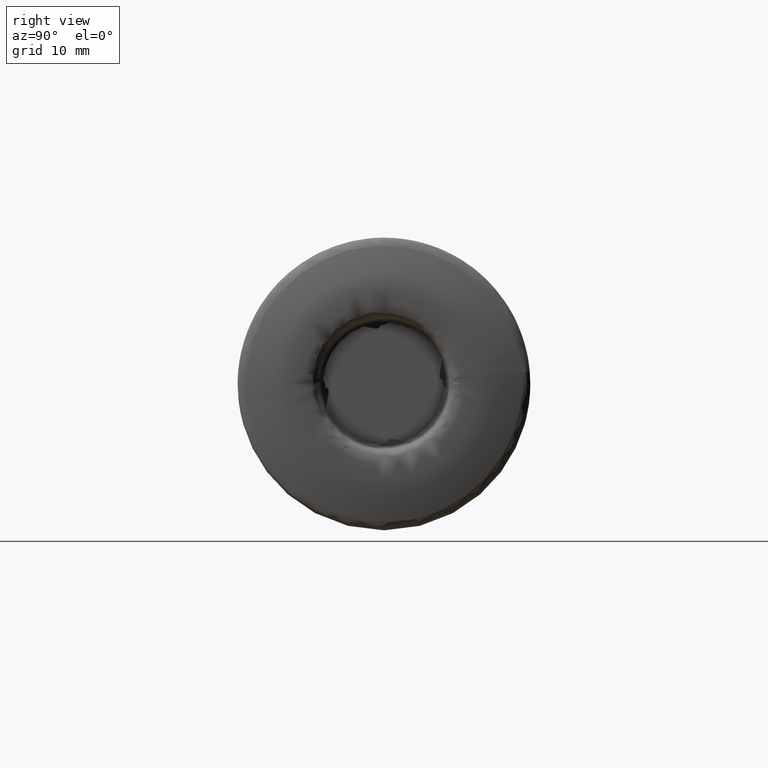
[diagram: clean part render]
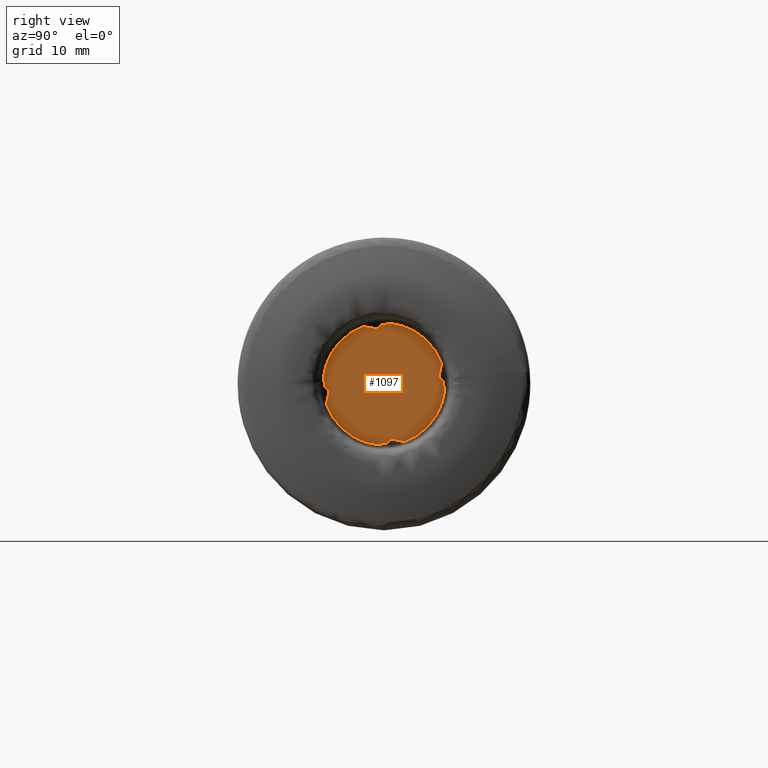
[diagram: same view with one face highlighted and labeled with its STEP entity id]
A machine part, right view. The second image highlights one B-rep face of the part: STEP entity #1097.
In plain terms, the highlighted planar face has unit normal (1, 0, -0).
Its self-contained STEP definition (entity closure, byte-faithful):
#48 = CARTESIAN_POINT ( 'NONE',  ( -1.250000000000000000, -6.057441666973489600, -0.9519473926571510000 ) ) ;
#93 = CARTESIAN_POINT ( 'NONE',  ( -1.250000000000001100, 6.452281388916555100, 0.3636903392071347300 ) ) ;
#139 = ORIENTED_EDGE ( 'NONE', *, *, #412, .F. ) ;
#150 = PLANE ( 'NONE',  #3189 ) ;
#231 = DIRECTION ( 'NONE',  ( -1.224646799147351500E-016, 1.000000000000000000, 0.0000000000000000000 ) ) ;
#240 = EDGE_CURVE ( 'NONE', #1516, #1267, #1296, .T. ) ;
#244 = CARTESIAN_POINT ( 'NONE',  ( -1.250000000000000400, 0.2442306626479584200, 6.526120147402795400 ) ) ;
#253 = ORIENTED_EDGE ( 'NONE', *, *, #4553, .T. ) ;
#263 = VECTOR ( 'NONE', #3299, 1000.000000000000100 ) ;
#315 = ORIENTED_EDGE ( 'NONE', *, *, #5205, .T. ) ;
#333 = CARTESIAN_POINT ( 'NONE',  ( -1.250000000000000700, 0.9519473926571705400, -6.057441666973487800 ) ) ;
#372 = EDGE_CURVE ( 'NONE', #3312, #5601, #2164, .T. ) ;
#396 = CARTESIAN_POINT ( 'NONE',  ( -1.250000000000000200, -1.530808498934189600E-016, 0.0000000000000000000 ) ) ;
#397 = ORIENTED_EDGE ( 'NONE', *, *, #5589, .T. ) ;
#412 = EDGE_CURVE ( 'NONE', #1138, #3725, #1132, .T. ) ;
#466 = EDGE_CURVE ( 'NONE', #5045, #3418, #6232, .T. ) ;
#477 = CARTESIAN_POINT ( 'NONE',  ( -1.250000000000001600, 6.448458001384087100, 0.002503947404829226000 ) ) ;
#501 =( BOUNDED_CURVE ( )  B_SPLINE_CURVE ( 3, ( #4812, #5329, #2274, #5850 ),
 .UNSPECIFIED., .F., .F. ) 
 B_SPLINE_CURVE_WITH_KNOTS ( ( 4, 4 ),
 ( 2.006936950805929600, 3.752266202800259800 ),
 .UNSPECIFIED. ) 
 CURVE ( )  GEOMETRIC_REPRESENTATION_ITEM ( )  RATIONAL_B_SPLINE_CURVE ( ( 1.000000000000000000, 0.7618584064576927600, 0.7618584064576927600, 1.000000000000000000 ) ) 
 REPRESENTATION_ITEM ( '' )  );
#519 = CARTESIAN_POINT ( 'NONE',  ( -1.249999999999999300, -6.210253814260271500, -0.3636903392071787500 ) ) ;
#534 = CIRCLE ( 'NONE', #5577, 6.684999999999999600 ) ;
#658 =( BOUNDED_CURVE ( )  B_SPLINE_CURVE ( 3, ( #4306, #244, #6367, #3313 ),
 .UNSPECIFIED., .F., .T. ) 
 B_SPLINE_CURVE_WITH_KNOTS ( ( 4, 4 ),
 ( 5.947954393526559100, 6.719325931190619300 ),
 .UNSPECIFIED. ) 
 CURVE ( )  GEOMETRIC_REPRESENTATION_ITEM ( )  RATIONAL_B_SPLINE_CURVE ( ( 1.000000000000000000, 0.9510271120106296200, 0.9510271120106296200, 1.000000000000000000 ) ) 
 REPRESENTATION_ITEM ( '' )  );
#670 = CARTESIAN_POINT ( 'NONE',  ( -1.250000000000000700, 0.1632019595909700300, -6.450159091985032200 ) ) ;
#690 = VECTOR ( 'NONE', #3190, 1000.000000000000000 ) ;
#708 = VECTOR ( 'NONE', #2686, 1000.000000000000000 ) ;
#753 = DIRECTION ( 'NONE',  ( 2.268472240234513600E-017, -0.1852348156067459800, -0.9826942877045409300 ) ) ;
#783 = CARTESIAN_POINT ( 'NONE',  ( -1.250000000000001100, -0.3636903392072029500, 6.549255849151034400 ) ) ;
#809 = CARTESIAN_POINT ( 'NONE',  ( -1.250000000000001100, -0.3636903392072004000, 6.210253814260270600 ) ) ;
#817 = VECTOR ( 'NONE', #1699, 1000.000000000000000 ) ;
#890 = LINE ( 'NONE', #5609, #4955 ) ;
#898 = EDGE_CURVE ( 'NONE', #4249, #3820, #5277, .T. ) ;
#907 = DIRECTION ( 'NONE',  ( -1.297474551964702500E-016, 1.000000000000000000, 0.0000000000000000000 ) ) ;
#1022 = ORIENTED_EDGE ( 'NONE', *, *, #2710, .T. ) ;
#1025 = CARTESIAN_POINT ( 'NONE',  ( -1.250000000000000000, -6.057441666973489600, -0.9519473926571510000 ) ) ;
#1030 = DIRECTION ( 'NONE',  ( 1.224646799147351700E-016, -1.000000000000000000, -3.737644989737371300E-015 ) ) ;
#1041 = CARTESIAN_POINT ( 'NONE',  ( -1.250000000000000000, -5.446941594640671600, 2.286833242395580200 ) ) ;
#1061 = CARTESIAN_POINT ( 'NONE',  ( -1.250000000000000200, -0.04828209003385523100, -6.447920398897466000 ) ) ;
#1074 = VERTEX_POINT ( 'NONE', #3228 ) ;
#1096 = VERTEX_POINT ( 'NONE', #1324 ) ;
#1097 = ADVANCED_FACE ( 'NONE', ( #2082 ), #150, .T. ) ;
#1132 = LINE ( 'NONE', #5487, #3845 ) ;
#1138 = VERTEX_POINT ( 'NONE', #6488 ) ;
#1174 = CARTESIAN_POINT ( 'NONE',  ( -1.250000000000001600, 6.684999999999999600, 0.0000000000000000000 ) ) ;
#1189 = CARTESIAN_POINT ( 'NONE',  ( -1.250000000000000700, 0.9519473926571705400, -6.057441666973487800 ) ) ;
#1208 = VECTOR ( 'NONE', #3142, 1000.000000000000100 ) ;
#1253 = CARTESIAN_POINT ( 'NONE',  ( -1.250000000000001600, 6.057441666973498500, 0.9519473926571087000 ) ) ;
#1267 = VERTEX_POINT ( 'NONE', #1189 ) ;
#1288 = ORIENTED_EDGE ( 'NONE', *, *, #5909, .T. ) ;
#1296 = LINE ( 'NONE', #2162, #263 ) ;
#1324 = CARTESIAN_POINT ( 'NONE',  ( -1.250000000000001100, 6.673269334927969300, -0.3958552557564825600 ) ) ;
#1363 =( BOUNDED_CURVE ( )  B_SPLINE_CURVE ( 3, ( #3914, #4416, #4942, #1889 ),
 .UNSPECIFIED., .F., .T. ) 
 B_SPLINE_CURVE_WITH_KNOTS ( ( 4, 4 ),
 ( 5.947954393526558200, 6.719325931190621900 ),
 .UNSPECIFIED. ) 
 CURVE ( )  GEOMETRIC_REPRESENTATION_ITEM ( )  RATIONAL_B_SPLINE_CURVE ( ( 1.000000000000000000, 0.9510271120106292800, 0.9510271120106292800, 1.000000000000000000 ) ) 
 REPRESENTATION_ITEM ( '' )  );
#1389 = CARTESIAN_POINT ( 'NONE',  ( -1.250000000000001600, 6.450159091985033100, 0.1632019595909001700 ) ) ;
#1400 = ORIENTED_EDGE ( 'NONE', *, *, #2639, .T. ) ;
#1445 = EDGE_CURVE ( 'NONE', #5842, #1074, #1363, .T. ) ;
#1493 = ORIENTED_EDGE ( 'NONE', *, *, #372, .T. ) ;
#1516 = VERTEX_POINT ( 'NONE', #2925 ) ;
#1529 = CARTESIAN_POINT ( 'NONE',  ( -1.250000000000000200, -1.530808498934189600E-016, 0.0000000000000000000 ) ) ;
#1545 = EDGE_CURVE ( 'NONE', #1746, #1074, #4387, .T. ) ;
#1547 = ORIENTED_EDGE ( 'NONE', *, *, #1545, .F. ) ;
#1556 = CARTESIAN_POINT ( 'NONE',  ( -1.249999999999999300, -6.673269334927972800, 0.3958552557564363200 ) ) ;
#1628 = CARTESIAN_POINT ( 'NONE',  ( -1.250000000000001600, 6.549255849151038000, 0.3636903392071342300 ) ) ;
#1650 = EDGE_CURVE ( 'NONE', #5028, #5842, #6122, .T. ) ;
#1699 = DIRECTION ( 'NONE',  ( -2.268472240234429200E-017, 0.1852348156067391000, 0.9826942877045421500 ) ) ;
#1746 = VERTEX_POINT ( 'NONE', #4646 ) ;
#1808 = ORIENTED_EDGE ( 'NONE', *, *, #4048, .T. ) ;
#1844 = CARTESIAN_POINT ( 'NONE',  ( -1.250000000000001100, 0.3636903392072000100, -6.210253814260269700 ) ) ;
#1889 = CARTESIAN_POINT ( 'NONE',  ( -1.250000000000000000, -6.450159091985033100, -0.1632019595909450200 ) ) ;
#1912 = VERTEX_POINT ( 'NONE', #2787 ) ;
#1932 = ORIENTED_EDGE ( 'NONE', *, *, #1650, .T. ) ;
#1992 = VECTOR ( 'NONE', #753, 999.9999999999998900 ) ;
#2019 =( BOUNDED_CURVE ( )  B_SPLINE_CURVE ( 3, ( #2880, #1844, #3379, #333 ),
 .UNSPECIFIED., .F., .T. ) 
 B_SPLINE_CURVE_WITH_KNOTS ( ( 4, 4 ),
 ( 2.006936950805930000, 3.752266202800257600 ),
 .UNSPECIFIED. ) 
 CURVE ( )  GEOMETRIC_REPRESENTATION_ITEM ( )  RATIONAL_B_SPLINE_CURVE ( ( 1.000000000000000000, 0.7618584064576934300, 0.7618584064576934300, 1.000000000000000000 ) ) 
 REPRESENTATION_ITEM ( '' )  );
#2045 = DIRECTION ( 'NONE',  ( -1.297474551964702500E-016, 1.000000000000000000, 0.0000000000000000000 ) ) ;
#2082 = FACE_OUTER_BOUND ( 'NONE', #2457, .T. ) ;
#2162 = CARTESIAN_POINT ( 'NONE',  ( -1.250000000000001300, 5.385656629125252300, -6.893182062686433300 ) ) ;
#2164 =( BOUNDED_CURVE ( )  B_SPLINE_CURVE ( 3, ( #783, #809, #3861, #4340 ),
 .UNSPECIFIED., .F., .F. ) 
 B_SPLINE_CURVE_WITH_KNOTS ( ( 4, 4 ),
 ( 2.006936950805930000, 3.752266202800258500 ),
 .UNSPECIFIED. ) 
 CURVE ( )  GEOMETRIC_REPRESENTATION_ITEM ( )  RATIONAL_B_SPLINE_CURVE ( ( 1.000000000000000000, 0.7618584064576930900, 0.7618584064576930900, 1.000000000000000000 ) ) 
 REPRESENTATION_ITEM ( '' )  );
#2222 = DIRECTION ( 'NONE',  ( 1.000000000000000000, 1.224646799147351500E-016, -0.0000000000000000000 ) ) ;
#2242 = EDGE_CURVE ( 'NONE', #4501, #6510, #5890, .T. ) ;
#2274 = CARTESIAN_POINT ( 'NONE',  ( -1.250000000000001600, 5.995072017569089700, 0.6210684593686451900 ) ) ;
#2391 = VERTEX_POINT ( 'NONE', #4435 ) ;
#2455 = VECTOR ( 'NONE', #3703, 1000.000000000000000 ) ;
#2457 = EDGE_LOOP ( 'NONE', ( #397, #1808, #5325, #1400, #4128, #6461, #253, #4954, #139, #3014, #1493, #2543, #1932, #5772, #1547, #315, #5349, #3784, #1022, #1288, #6136, #6604, #4822, #4962 ) ) ;
#2505 =( BOUNDED_CURVE ( )  B_SPLINE_CURVE ( 3, ( #4405, #2915, #4433, #1389 ),
 .UNSPECIFIED., .F., .F. ) 
 B_SPLINE_CURVE_WITH_KNOTS ( ( 4, 4 ),
 ( 5.947954393526559100, 6.719325931190621900 ),
 .UNSPECIFIED. ) 
 CURVE ( )  GEOMETRIC_REPRESENTATION_ITEM ( )  RATIONAL_B_SPLINE_CURVE ( ( 1.000000000000000000, 0.9510271120106292800, 0.9510271120106292800, 1.000000000000000000 ) ) 
 REPRESENTATION_ITEM ( '' )  );
#2543 = ORIENTED_EDGE ( 'NONE', *, *, #6169, .F. ) ;
#2555 = DIRECTION ( 'NONE',  ( 1.227204096360529100E-016, -0.9999439768675593100, 0.01058504257383587400 ) ) ;
#2611 = LINE ( 'NONE', #3203, #2455 ) ;
#2619 = DIRECTION ( 'NONE',  ( -1.203453413977754600E-016, 0.9826942877045427000, -0.1852348156067357100 ) ) ;
#2625 = CARTESIAN_POINT ( 'NONE',  ( -1.250000000000000700, 0.3636903392072024500, -6.452281388916551600 ) ) ;
#2639 = EDGE_CURVE ( 'NONE', #4249, #5988, #4595, .T. ) ;
#2666 =( BOUNDED_CURVE ( )  B_SPLINE_CURVE ( 3, ( #3109, #4113, #1061, #4635 ),
 .UNSPECIFIED., .F., .F. ) 
 B_SPLINE_CURVE_WITH_KNOTS ( ( 4, 4 ),
 ( 5.947954393526559100, 6.719325931190624600 ),
 .UNSPECIFIED. ) 
 CURVE ( )  GEOMETRIC_REPRESENTATION_ITEM ( )  RATIONAL_B_SPLINE_CURVE ( ( 1.000000000000000000, 0.9510271120106290600, 0.9510271120106290600, 1.000000000000000000 ) ) 
 REPRESENTATION_ITEM ( '' )  );
#2686 = DIRECTION ( 'NONE',  ( -8.853126418927959600E-031, 7.229126328580505400E-015, -1.000000000000000000 ) ) ;
#2710 = EDGE_CURVE ( 'NONE', #5045, #3607, #534, .T. ) ;
#2787 = CARTESIAN_POINT ( 'NONE',  ( -1.250000000000001100, 0.3636903392072024500, -6.549255849151034400 ) ) ;
#2849 = CARTESIAN_POINT ( 'NONE',  ( -1.250000000000000200, -1.530808498934189600E-016, 0.0000000000000000000 ) ) ;
#2880 = CARTESIAN_POINT ( 'NONE',  ( -1.250000000000001100, 0.3636903392072024500, -6.549255849151034400 ) ) ;
#2900 = EDGE_CURVE ( 'NONE', #1138, #3312, #2611, .T. ) ;
#2915 = CARTESIAN_POINT ( 'NONE',  ( -1.250000000000001100, 6.526120147402791900, -0.2442306626480264300 ) ) ;
#2925 = CARTESIAN_POINT ( 'NONE',  ( -1.250000000000000400, 2.236885063294663300, -6.299648419841319400 ) ) ;
#3014 = ORIENTED_EDGE ( 'NONE', *, *, #2900, .T. ) ;
#3033 = EDGE_CURVE ( 'NONE', #1912, #1267, #2019, .T. ) ;
#3091 = EDGE_CURVE ( 'NONE', #4121, #3418, #3202, .T. ) ;
#3109 = CARTESIAN_POINT ( 'NONE',  ( -1.250000000000000200, -0.3958552557564123900, -6.673269334927973700 ) ) ;
#3142 = DIRECTION ( 'NONE',  ( 1.296293850689936500E-018, -0.01058504257384634300, -0.9999439768675593100 ) ) ;
#3189 = AXIS2_PLACEMENT_3D ( 'NONE', #1174, #3827, #231 ) ;
#3190 = DIRECTION ( 'NONE',  ( -1.224646799147351700E-016, 1.000000000000000000, -3.245317687948895100E-015 ) ) ;
#3202 =( BOUNDED_CURVE ( )  B_SPLINE_CURVE ( 3, ( #5439, #519, #3565, #1025 ),
 .UNSPECIFIED., .F., .F. ) 
 B_SPLINE_CURVE_WITH_KNOTS ( ( 4, 4 ),
 ( 2.006936950805930000, 3.752266202800259400 ),
 .UNSPECIFIED. ) 
 CURVE ( )  GEOMETRIC_REPRESENTATION_ITEM ( )  RATIONAL_B_SPLINE_CURVE ( ( 1.000000000000000000, 0.7618584064576929800, 0.7618584064576929800, 1.000000000000000000 ) ) 
 REPRESENTATION_ITEM ( '' )  );
#3203 = CARTESIAN_POINT ( 'NONE',  ( -1.250000000000000700, -0.3636903392071543800, -5.095587291317349700E-014 ) ) ;
#3228 = CARTESIAN_POINT ( 'NONE',  ( -1.250000000000000000, -6.450159091985033100, -0.1632019595909450200 ) ) ;
#3278 = DIRECTION ( 'NONE',  ( -1.227204096360529100E-016, 0.9999439768675593100, -0.01058504257383586700 ) ) ;
#3299 = DIRECTION ( 'NONE',  ( 1.203453413977754600E-016, -0.9826942877045427000, 0.1852348156067356900 ) ) ;
#3312 = VERTEX_POINT ( 'NONE', #4597 ) ;
#3313 = CARTESIAN_POINT ( 'NONE',  ( -1.250000000000000700, -0.1632019595909656700, 6.450159091985031300 ) ) ;
#3346 = DIRECTION ( 'NONE',  ( -1.297474551964702500E-016, 1.000000000000000000, 0.0000000000000000000 ) ) ;
#3379 = CARTESIAN_POINT ( 'NONE',  ( -1.250000000000001100, 0.6210684593687073600, -5.995072017569084400 ) ) ;
#3418 = VERTEX_POINT ( 'NONE', #48 ) ;
#3484 = VERTEX_POINT ( 'NONE', #2625 ) ;
#3565 = CARTESIAN_POINT ( 'NONE',  ( -1.249999999999999300, -5.995072017569087900, -0.6210684593686870400 ) ) ;
#3607 = VERTEX_POINT ( 'NONE', #6289 ) ;
#3703 = DIRECTION ( 'NONE',  ( 8.853126418927959600E-031, -7.229126328580505400E-015, 1.000000000000000000 ) ) ;
#3714 = AXIS2_PLACEMENT_3D ( 'NONE', #2849, #6399, #3346 ) ;
#3725 = VERTEX_POINT ( 'NONE', #5883 ) ;
#3733 = VECTOR ( 'NONE', #2619, 1000.000000000000100 ) ;
#3784 = ORIENTED_EDGE ( 'NONE', *, *, #466, .F. ) ;
#3808 = CARTESIAN_POINT ( 'NONE',  ( -1.250000000000001600, 5.905692191165656800, 0.1468970971710064100 ) ) ;
#3820 = VERTEX_POINT ( 'NONE', #5799 ) ;
#3827 = DIRECTION ( 'NONE',  ( 1.000000000000000000, 1.224646799147351500E-016, -0.0000000000000000000 ) ) ;
#3845 = VECTOR ( 'NONE', #3278, 1000.000000000000100 ) ;
#3861 = CARTESIAN_POINT ( 'NONE',  ( -1.250000000000001100, -0.6210684593687079100, 5.995072017569085300 ) ) ;
#3914 = CARTESIAN_POINT ( 'NONE',  ( -1.249999999999999300, -6.673269334927972800, 0.3958552557564363200 ) ) ;
#3948 = CARTESIAN_POINT ( 'NONE',  ( -1.249999999999999300, -6.549255849151036200, -0.3636903392071799700 ) ) ;
#3958 = DIRECTION ( 'NONE',  ( 1.000000000000000000, 1.224646799147351500E-016, -0.0000000000000000000 ) ) ;
#3996 = CIRCLE ( 'NONE', #6596, 6.684999999999999600 ) ;
#4048 = EDGE_CURVE ( 'NONE', #1096, #3820, #2505, .T. ) ;
#4080 = CARTESIAN_POINT ( 'NONE',  ( -1.250000000000001600, 6.685000000000001400, -0.3636903392071306200 ) ) ;
#4113 = CARTESIAN_POINT ( 'NONE',  ( -1.250000000000000200, -0.2442306626479574500, -6.526120147402794600 ) ) ;
#4121 = VERTEX_POINT ( 'NONE', #3948 ) ;
#4128 = ORIENTED_EDGE ( 'NONE', *, *, #6524, .T. ) ;
#4249 = VERTEX_POINT ( 'NONE', #93 ) ;
#4306 = CARTESIAN_POINT ( 'NONE',  ( -1.250000000000000200, 0.3958552557564122300, 6.673269334927973700 ) ) ;
#4340 = CARTESIAN_POINT ( 'NONE',  ( -1.250000000000000400, -0.9519473926571714300, 6.057441666973488700 ) ) ;
#4387 = LINE ( 'NONE', #4474, #5597 ) ;
#4405 = CARTESIAN_POINT ( 'NONE',  ( -1.250000000000001100, 6.673269334927969300, -0.3958552557564825600 ) ) ;
#4416 = CARTESIAN_POINT ( 'NONE',  ( -1.250000000000000400, -6.526120147402794600, 0.2442306626479812700 ) ) ;
#4433 = CARTESIAN_POINT ( 'NONE',  ( -1.250000000000001100, 6.447920398897466000, -0.04828209003392423800 ) ) ;
#4435 = CARTESIAN_POINT ( 'NONE',  ( -1.250000000000000200, 0.3958552557564122300, 6.673269334927973700 ) ) ;
#4474 = CARTESIAN_POINT ( 'NONE',  ( -1.250000000000000000, -6.446959984785590500, 0.1390101433005790400 ) ) ;
#4501 = VERTEX_POINT ( 'NONE', #5281 ) ;
#4553 = EDGE_CURVE ( 'NONE', #4501, #2391, #6336, .T. ) ;
#4595 = LINE ( 'NONE', #6233, #690 ) ;
#4597 = CARTESIAN_POINT ( 'NONE',  ( -1.250000000000001100, -0.3636903392072029500, 6.549255849151034400 ) ) ;
#4610 = LINE ( 'NONE', #6237, #708 ) ;
#4635 = CARTESIAN_POINT ( 'NONE',  ( -1.250000000000000700, 0.1632019595909700300, -6.450159091985032200 ) ) ;
#4646 = CARTESIAN_POINT ( 'NONE',  ( -1.250000000000000200, -6.452281388916552500, -0.3636903392071797500 ) ) ;
#4780 = VECTOR ( 'NONE', #1030, 1000.000000000000000 ) ;
#4812 = CARTESIAN_POINT ( 'NONE',  ( -1.250000000000001600, 6.549255849151038000, 0.3636903392071342300 ) ) ;
#4822 = ORIENTED_EDGE ( 'NONE', *, *, #3033, .T. ) ;
#4849 = CARTESIAN_POINT ( 'NONE',  ( -1.250000000000000000, -2.236885063294660200, 6.299648419841321200 ) ) ;
#4874 = CARTESIAN_POINT ( 'NONE',  ( -1.249999999999999600, -6.299648419841327400, -2.236885063294642400 ) ) ;
#4942 = CARTESIAN_POINT ( 'NONE',  ( -1.250000000000000400, -6.447920398897466000, 0.04828209003387946800 ) ) ;
#4954 = ORIENTED_EDGE ( 'NONE', *, *, #4978, .T. ) ;
#4955 = VECTOR ( 'NONE', #2555, 1000.000000000000100 ) ;
#4962 = ORIENTED_EDGE ( 'NONE', *, *, #240, .F. ) ;
#4978 = EDGE_CURVE ( 'NONE', #2391, #3725, #658, .T. ) ;
#5028 = VERTEX_POINT ( 'NONE', #4849 ) ;
#5045 = VERTEX_POINT ( 'NONE', #4874 ) ;
#5092 = DIRECTION ( 'NONE',  ( 1.000000000000000000, 1.224646799147351500E-016, -0.0000000000000000000 ) ) ;
#5199 = EDGE_CURVE ( 'NONE', #3484, #5396, #890, .T. ) ;
#5205 = EDGE_CURVE ( 'NONE', #1746, #4121, #6138, .T. ) ;
#5277 = LINE ( 'NONE', #477, #1208 ) ;
#5278 = CARTESIAN_POINT ( 'NONE',  ( -1.250000000000000200, -1.530808498934189600E-016, 0.0000000000000000000 ) ) ;
#5281 = CARTESIAN_POINT ( 'NONE',  ( -1.250000000000000900, 6.299648419841343400, 2.236885063294595400 ) ) ;
#5325 = ORIENTED_EDGE ( 'NONE', *, *, #898, .F. ) ;
#5329 = CARTESIAN_POINT ( 'NONE',  ( -1.250000000000001600, 6.210253814260273200, 0.3636903392071350600 ) ) ;
#5349 = ORIENTED_EDGE ( 'NONE', *, *, #3091, .T. ) ;
#5396 = VERTEX_POINT ( 'NONE', #670 ) ;
#5439 = CARTESIAN_POINT ( 'NONE',  ( -1.249999999999999300, -6.549255849151036200, -0.3636903392071799700 ) ) ;
#5487 = CARTESIAN_POINT ( 'NONE',  ( -1.250000000000001600, 6.752504089648605000, 6.376951947732157700 ) ) ;
#5523 = DIRECTION ( 'NONE',  ( -1.296293850689081200E-018, 0.01058504257383935900, 0.9999439768675593100 ) ) ;
#5577 = AXIS2_PLACEMENT_3D ( 'NONE', #5278, #2222, #5796 ) ;
#5589 = EDGE_CURVE ( 'NONE', #1516, #1096, #3996, .T. ) ;
#5597 = VECTOR ( 'NONE', #5523, 1000.000000000000100 ) ;
#5601 = VERTEX_POINT ( 'NONE', #6480 ) ;
#5609 = CARTESIAN_POINT ( 'NONE',  ( -1.250000000000001600, 6.615997893752898500, -6.518466038437518200 ) ) ;
#5669 = CARTESIAN_POINT ( 'NONE',  ( -1.250000000000001600, 7.525592774349791000, 4.459451723119894200 ) ) ;
#5772 = ORIENTED_EDGE ( 'NONE', *, *, #1445, .T. ) ;
#5796 = DIRECTION ( 'NONE',  ( -1.297474551964702500E-016, 1.000000000000000000, 0.0000000000000000000 ) ) ;
#5799 = CARTESIAN_POINT ( 'NONE',  ( -1.250000000000001600, 6.450159091985033100, 0.1632019595909001700 ) ) ;
#5842 = VERTEX_POINT ( 'NONE', #1556 ) ;
#5850 = CARTESIAN_POINT ( 'NONE',  ( -1.250000000000001600, 6.057441666973498500, 0.9519473926571087000 ) ) ;
#5883 = CARTESIAN_POINT ( 'NONE',  ( -1.250000000000000700, -0.1632019595909656700, 6.450159091985031300 ) ) ;
#5890 = LINE ( 'NONE', #3808, #1992 ) ;
#5909 = EDGE_CURVE ( 'NONE', #3607, #5396, #2666, .T. ) ;
#5988 = VERTEX_POINT ( 'NONE', #1628 ) ;
#6080 = AXIS2_PLACEMENT_3D ( 'NONE', #1529, #5092, #2045 ) ;
#6122 = CIRCLE ( 'NONE', #6080, 6.684999999999999600 ) ;
#6136 = ORIENTED_EDGE ( 'NONE', *, *, #5199, .F. ) ;
#6138 = LINE ( 'NONE', #4080, #4780 ) ;
#6169 = EDGE_CURVE ( 'NONE', #5028, #5601, #6459, .T. ) ;
#6232 = LINE ( 'NONE', #1041, #817 ) ;
#6233 = CARTESIAN_POINT ( 'NONE',  ( -1.250000000000001600, 6.685000000000000500, 0.3636903392071338900 ) ) ;
#6237 = CARTESIAN_POINT ( 'NONE',  ( -1.250000000000000700, 0.3636903392071561500, -4.569754609994785300E-014 ) ) ;
#6279 = EDGE_CURVE ( 'NONE', #3484, #1912, #4610, .T. ) ;
#6289 = CARTESIAN_POINT ( 'NONE',  ( -1.250000000000000200, -0.3958552557564123900, -6.673269334927973700 ) ) ;
#6336 = CIRCLE ( 'NONE', #3714, 6.684999999999999600 ) ;
#6367 = CARTESIAN_POINT ( 'NONE',  ( -1.250000000000000400, 0.04828209003385780500, 6.447920398897466000 ) ) ;
#6399 = DIRECTION ( 'NONE',  ( 1.000000000000000000, 1.224646799147351500E-016, -0.0000000000000000000 ) ) ;
#6459 = LINE ( 'NONE', #5669, #3733 ) ;
#6461 = ORIENTED_EDGE ( 'NONE', *, *, #2242, .F. ) ;
#6480 = CARTESIAN_POINT ( 'NONE',  ( -1.250000000000000400, -0.9519473926571714300, 6.057441666973488700 ) ) ;
#6488 = CARTESIAN_POINT ( 'NONE',  ( -1.250000000000000700, -0.3636903392072017300, 6.452281388916550700 ) ) ;
#6510 = VERTEX_POINT ( 'NONE', #1253 ) ;
#6524 = EDGE_CURVE ( 'NONE', #5988, #6510, #501, .T. ) ;
#6596 = AXIS2_PLACEMENT_3D ( 'NONE', #396, #3958, #907 ) ;
#6604 = ORIENTED_EDGE ( 'NONE', *, *, #6279, .T. ) ;